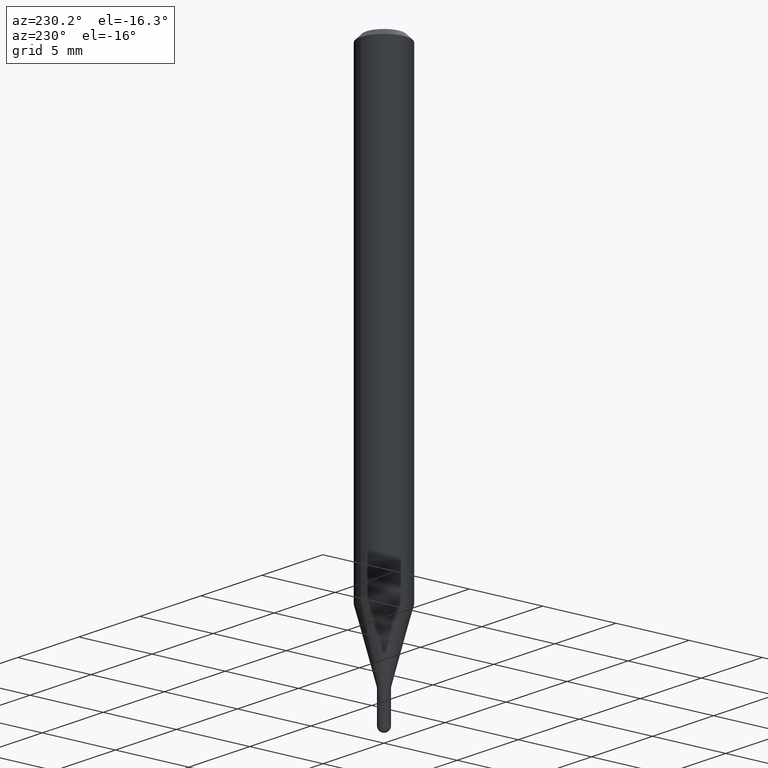
[diagram: clean part render]
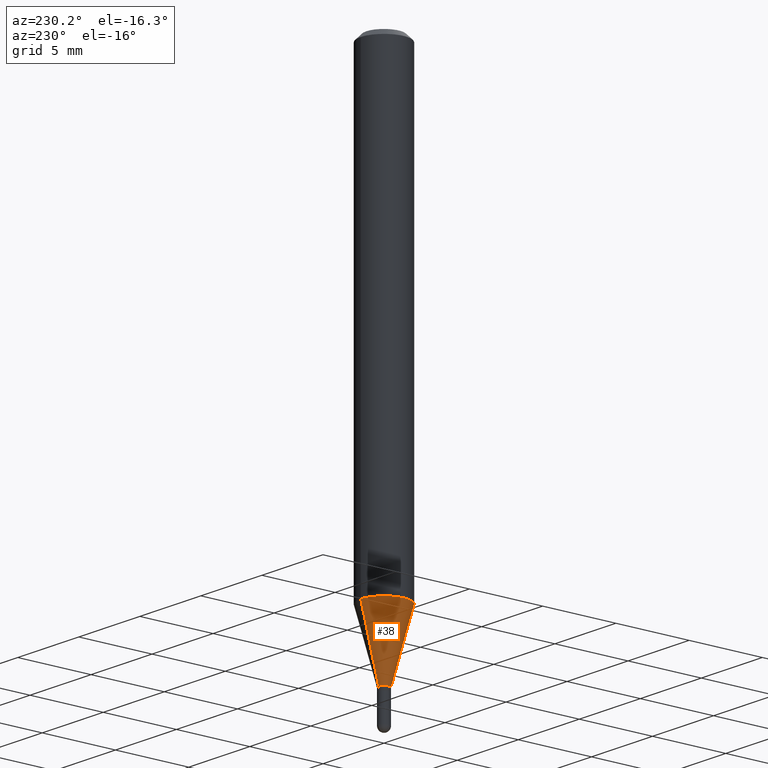
[diagram: same view with one face highlighted and labeled with its STEP entity id]
A machine part, auxiliary view. The second image highlights one B-rep face of the part: STEP entity #38.
In plain terms, the highlighted conical surface has half-angle 15 deg.
Its self-contained STEP definition (entity closure, byte-faithful):
#23 = VERTEX_POINT ( 'NONE', #24 ) ;
#24 = CARTESIAN_POINT ( 'NONE',  ( -1.012529588264160223E-16, -0.01450000000000482153, -1.402999999999999803 ) ) ;
#31 = DIRECTION ( 'NONE',  ( -2.445455221806396533E-29, 3.491500792446676445E-15, 1.000000000000000000 ) ) ;
#38 = ADVANCED_FACE ( 'NONE', ( #501 ), #500, .T. ) ;
#64 = AXIS2_PLACEMENT_3D ( 'NONE', #319, #31, #125 ) ;
#97 = CARTESIAN_POINT ( 'NONE',  ( 4.440892098500922971E-16, 0.06249999999999571176, -1.223861561236694540 ) ) ;
#117 = ORIENTED_EDGE ( 'NONE', *, *, #475, .T. ) ;
#125 = DIRECTION ( 'NONE',  ( -6.982962677686265922E-15, -1.000000000000000000, 0.000000000000000000 ) ) ;
#147 = EDGE_CURVE ( 'NONE', #413, #221, #369, .T. ) ;
#156 = CARTESIAN_POINT ( 'NONE',  ( 2.992898645694403006E-29, -4.273113610902943475E-15, -1.223861561236694095 ) ) ;
#159 = AXIS2_PLACEMENT_3D ( 'NONE', #459, #193, #424 ) ;
#193 = DIRECTION ( 'NONE',  ( -2.445455221806396533E-29, 3.491500792446676445E-15, 1.000000000000000000 ) ) ;
#209 = CARTESIAN_POINT ( 'NONE',  ( -4.364351673553617913E-16, -0.06250000000000427436, -1.223861561236693873 ) ) ;
#211 = CARTESIAN_POINT ( 'NONE',  ( -1.012529588264160223E-16, -0.01450000000000482153, -1.402999999999999803 ) ) ;
#217 = DIRECTION ( 'NONE',  ( -6.982962677686265922E-15, -1.000000000000000000, 4.370956789862821150E-15 ) ) ;
#221 = VERTEX_POINT ( 'NONE', #209 ) ;
#231 = EDGE_CURVE ( 'NONE', #23, #221, #292, .T. ) ;
#234 = LINE ( 'NONE', #390, #321 ) ;
#239 = EDGE_LOOP ( 'NONE', ( #300, #117, #311, #426 ) ) ;
#244 = CARTESIAN_POINT ( 'NONE',  ( 2.735589532676705169E-16, 0.01449999999999502555, -1.402999999999999803 ) ) ;
#285 = CIRCLE ( 'NONE', #64, 0.01449999999999992441 ) ;
#292 = LINE ( 'NONE', #211, #490 ) ;
#297 = DIRECTION ( 'NONE',  ( -1.807323732225331717E-15, -0.2588190451025184080, 0.9659258262890689783 ) ) ;
#300 = ORIENTED_EDGE ( 'NONE', *, *, #441, .F. ) ;
#311 = ORIENTED_EDGE ( 'NONE', *, *, #231, .T. ) ;
#319 = CARTESIAN_POINT ( 'NONE',  ( 3.430973676194374138E-29, -4.898575611802686813E-15, -1.402999999999999803 ) ) ;
#321 = VECTOR ( 'NONE', #353, 39.37007874015748854 ) ;
#329 = VERTEX_POINT ( 'NONE', #244 ) ;
#345 = AXIS2_PLACEMENT_3D ( 'NONE', #156, #427, #217 ) ;
#353 = DIRECTION ( 'NONE',  ( 1.839019923739601893E-15, 0.2588190451025252359, 0.9659258262890670910 ) ) ;
#369 = CIRCLE ( 'NONE', #345, 0.06250000000000000000 ) ;
#390 = CARTESIAN_POINT ( 'NONE',  ( 1.030286966852482683E-16, 0.01449999999999502555, -1.402999999999999803 ) ) ;
#413 = VERTEX_POINT ( 'NONE', #97 ) ;
#424 = DIRECTION ( 'NONE',  ( -6.982962677686265922E-15, -1.000000000000000000, 0.000000000000000000 ) ) ;
#426 = ORIENTED_EDGE ( 'NONE', *, *, #147, .F. ) ;
#427 = DIRECTION ( 'NONE',  ( -2.445455221806396533E-29, 3.491500792446676445E-15, 1.000000000000000000 ) ) ;
#441 = EDGE_CURVE ( 'NONE', #329, #413, #234, .T. ) ;
#459 = CARTESIAN_POINT ( 'NONE',  ( 3.430973676194374138E-29, -4.898575611802686813E-15, -1.402999999999999803 ) ) ;
#475 = EDGE_CURVE ( 'NONE', #329, #23, #285, .T. ) ;
#490 = VECTOR ( 'NONE', #297, 39.37007874015748854 ) ;
#500 = CONICAL_SURFACE ( 'NONE', #159, 0.01449999999999992441, 0.2617993877991505181 ) ;
#501 = FACE_OUTER_BOUND ( 'NONE', #239, .T. ) ;